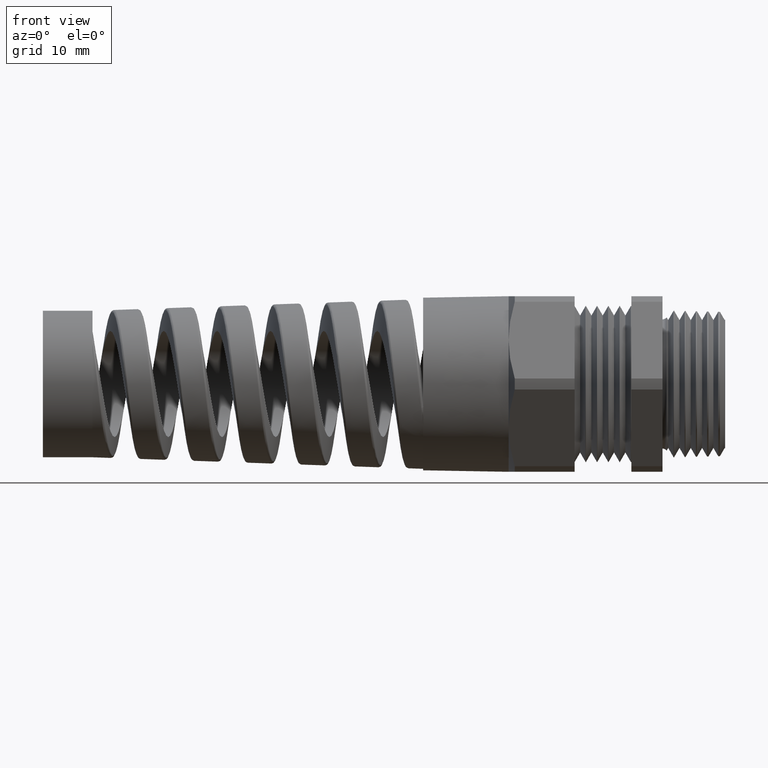
[diagram: clean part render]
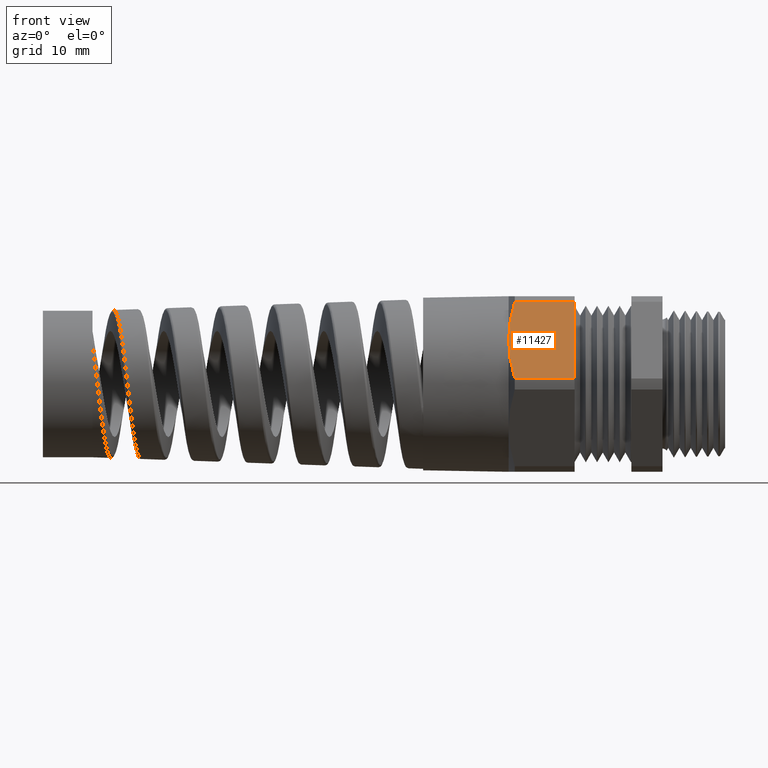
[diagram: same view with one face highlighted and labeled with its STEP entity id]
A machine part, front view. The second image highlights one B-rep face of the part: STEP entity #11427.
In plain terms, the highlighted planar face has unit normal (0, -0.866, 0.5).
Its self-contained STEP definition (entity closure, byte-faithful):
#306 = VERTEX_POINT ( 'NONE', #2438 ) ;
#2438 = CARTESIAN_POINT ( 'NONE',  ( -0.7624999999999999600, -0.3767210506462307900, 0.2175000000000000300 ) ) ;
#7910 = CARTESIAN_POINT ( 'NONE',  ( -0.7597203606031718300, -0.3397527252372444800, 0.2815310178791041200 ) ) ;
#7936 = CARTESIAN_POINT ( 'NONE',  ( -0.7493311775536697400, -0.3032040481611312800, 0.3448351835243596600 ) ) ;
#7937 = CARTESIAN_POINT ( 'NONE',  ( -0.7417450122960579400, -0.2850615992574269700, 0.3762588267992976700 ) ) ;
#7939 = CARTESIAN_POINT ( 'NONE',  ( -0.7323623159483017000, -0.2670182247938398500, 0.4075108681102215800 ) ) ;
#7946 = CARTESIAN_POINT ( 'NONE',  ( -0.7323623159483018100, -0.4864238764986216200, 0.02748913188977848000 ) ) ;
#7947 = CARTESIAN_POINT ( 'NONE',  ( -0.7417006885249694000, -0.4684657387697103200, 0.05859353884557252900 ) ) ;
#7948 = CARTESIAN_POINT ( 'NONE',  ( -0.7492861424846492000, -0.4503640277159277600, 0.08994662209465513500 ) ) ;
#7949 = CARTESIAN_POINT ( 'NONE',  ( -0.7571011813166665900, -0.4229196209126646100, 0.1374817290614958300 ) ) ;
#7950 = CARTESIAN_POINT ( 'NONE',  ( -0.7591120385614670300, -0.4137228208108981200, 0.1534110541048098200 ) ) ;
#7951 = CARTESIAN_POINT ( 'NONE',  ( -0.7618159347075882400, -0.3952212843008442400, 0.1854566553583137900 ) ) ;
#7952 = CARTESIAN_POINT ( 'NONE',  ( -0.7625000000000002900, -0.3859386916138720600, 0.2015345775181172600 ) ) ;
#7953 = CARTESIAN_POINT ( 'NONE',  ( -0.7624999999999999600, -0.3767210506462307900, 0.2175000000000000300 ) ) ;
#7954 = B_SPLINE_CURVE_WITH_KNOTS ( 'NONE', 3,
 ( #7939, #7937, #7936, #7910, #8253, #8252 ),
 .UNSPECIFIED., .F., .F.,
 ( 4, 2, 4 ),
 ( 2.361310027901137800E-007, 0.002811853236709174400, 0.005623470342415562300 ),
 .UNSPECIFIED. ) ;
#7955 = B_SPLINE_CURVE_WITH_KNOTS ( 'NONE', 3,
 ( #7953, #7952, #7951, #7950, #7949, #7948, #7947, #7946 ),
 .UNSPECIFIED., .F., .F.,
 ( 4, 2, 2, 4 ),
 ( 0.005623470342415562300, 0.007019771465515196900, 0.008416072588614832400, 0.01120867483481409600 ),
 .UNSPECIFIED. ) ;
#7956 = DIRECTION ( 'NONE',  ( 0.0000000000000000000, 0.5000000000000002200, 0.8660254037844386000 ) ) ;
#7957 = VECTOR ( 'NONE', #7956, 39.37007874015747400 ) ;
#7958 = CARTESIAN_POINT ( 'NONE',  ( -0.4358333333333332400, -0.2799960506462307300, 0.3850326143620998500 ) ) ;
#7959 = LINE ( 'NONE', #7958, #7957 ) ;
#8038 = DIRECTION ( 'NONE',  ( 1.000000000000000000, 0.0000000000000000000, 0.0000000000000000000 ) ) ;
#8039 = VECTOR ( 'NONE', #8038, 39.37007874015748100 ) ;
#8040 = CARTESIAN_POINT ( 'NONE',  ( -2.154289792128107500, -0.2670182247938398000, 0.4075108681102215200 ) ) ;
#8041 = LINE ( 'NONE', #8040, #8039 ) ;
#8067 = CARTESIAN_POINT ( 'NONE',  ( -0.4358333333333332900, -0.2670182247938398000, 0.4075108681102215200 ) ) ;
#8138 = CARTESIAN_POINT ( 'NONE',  ( -0.7323623159483017000, -0.2670182247938398500, 0.4075108681102215800 ) ) ;
#8154 = DIRECTION ( 'NONE',  ( 1.000000000000000000, 0.0000000000000000000, 0.0000000000000000000 ) ) ;
#8156 = VECTOR ( 'NONE', #8154, 39.37007874015748100 ) ;
#8157 = CARTESIAN_POINT ( 'NONE',  ( -2.154289792128107500, -0.4864238764986216800, 0.02748913188977850100 ) ) ;
#8158 = LINE ( 'NONE', #8157, #8156 ) ;
#8160 = CARTESIAN_POINT ( 'NONE',  ( -0.4358333333333332900, -0.4864238764986216800, 0.02748913188977850100 ) ) ;
#8164 = CARTESIAN_POINT ( 'NONE',  ( -0.7323623159483018100, -0.4864238764986216200, 0.02748913188977848000 ) ) ;
#8245 = DIRECTION ( 'NONE',  ( 0.0000000000000000000, -0.5000000000000001100, -0.8660254037844386000 ) ) ;
#8246 = DIRECTION ( 'NONE',  ( 0.0000000000000000000, -0.8660254037844386000, 0.5000000000000001100 ) ) ;
#8247 = CARTESIAN_POINT ( 'NONE',  ( -2.154289792128107500, -0.2670182247938399100, 0.4075108681102214700 ) ) ;
#8248 = AXIS2_PLACEMENT_3D ( 'NONE', #8247, #8246, #8245 ) ;
#8250 = PLANE ( 'NONE',  #8248 ) ;
#8251 = FACE_OUTER_BOUND ( 'NONE', #11415, .T. ) ;
#8252 = CARTESIAN_POINT ( 'NONE',  ( -0.7624999999999999600, -0.3767210506462307900, 0.2175000000000000300 ) ) ;
#8253 = CARTESIAN_POINT ( 'NONE',  ( -0.7624999999999999600, -0.3581602426728416300, 0.2496482624394394900 ) ) ;
#11195 = VERTEX_POINT ( 'NONE', #8164 ) ;
#11201 = VERTEX_POINT ( 'NONE', #8160 ) ;
#11205 = EDGE_CURVE ( 'NONE', #11195, #11201, #8158, .T. ) ;
#11212 = VERTEX_POINT ( 'NONE', #8138 ) ;
#11248 = VERTEX_POINT ( 'NONE', #8067 ) ;
#11261 = EDGE_CURVE ( 'NONE', #11212, #11248, #8041, .T. ) ;
#11414 = ORIENTED_EDGE ( 'NONE', *, *, #11205, .T. ) ;
#11415 = EDGE_LOOP ( 'NONE', ( #11418, #11417, #11434, #11414, #11416 ) ) ;
#11416 = ORIENTED_EDGE ( 'NONE', *, *, #11420, .T. ) ;
#11417 = ORIENTED_EDGE ( 'NONE', *, *, #11426, .T. ) ;
#11418 = ORIENTED_EDGE ( 'NONE', *, *, #11261, .F. ) ;
#11420 = EDGE_CURVE ( 'NONE', #11201, #11248, #7959, .T. ) ;
#11423 = EDGE_CURVE ( 'NONE', #306, #11195, #7955, .T. ) ;
#11426 = EDGE_CURVE ( 'NONE', #11212, #306, #7954, .T. ) ;
#11427 = ADVANCED_FACE ( 'NONE', ( #8251 ), #8250, .T. ) ;
#11434 = ORIENTED_EDGE ( 'NONE', *, *, #11423, .T. ) ;